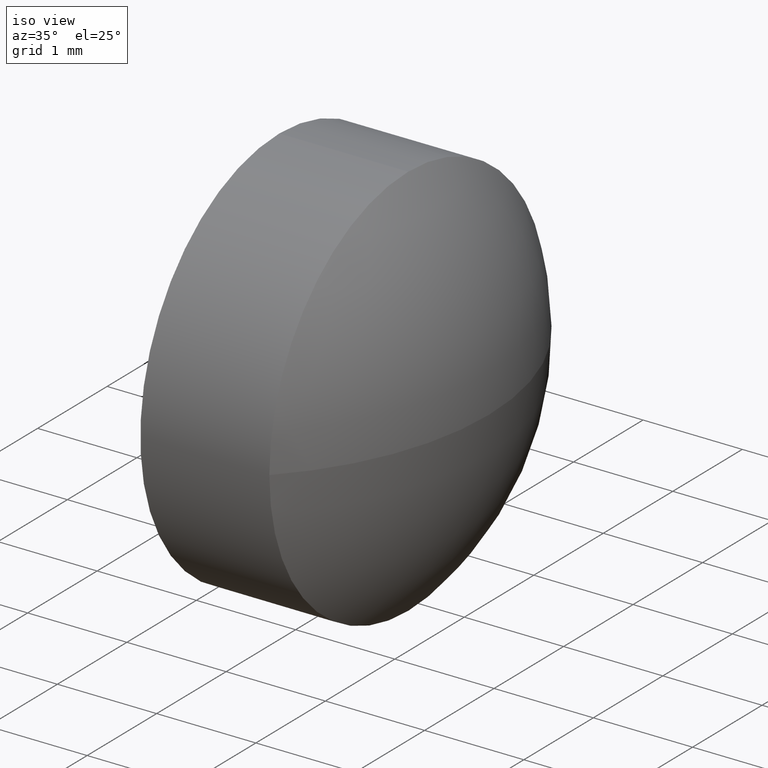
[diagram: clean part render]
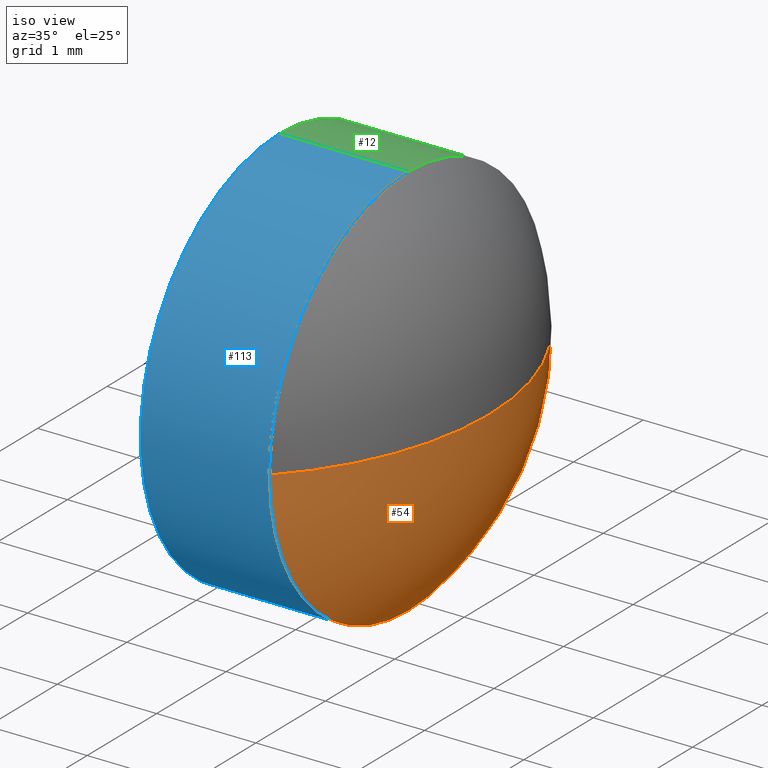
[diagram: same view with three faces highlighted in distinct colors, each labeled with its STEP entity id]
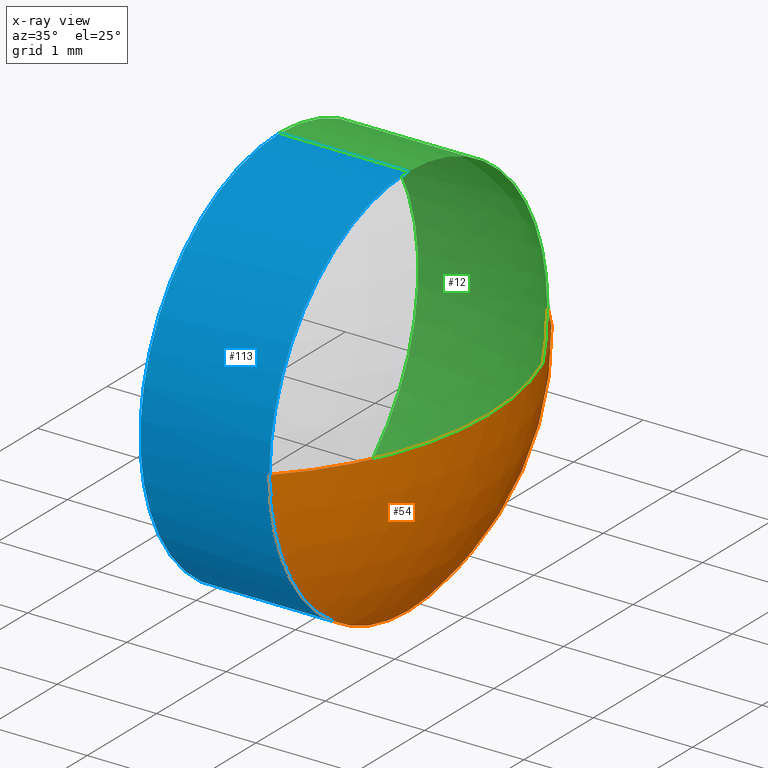
[diagram: x-ray of the same camera — body ghosted, the three highlighted faces saturated]
A machine part, iso view with three faces highlighted in distinct colors.
The next image is the same camera in x-ray (body ghosted, the three faces saturated) — at least one of them is partly hidden behind the body in this view.
Their STEP definitions:

[orange] entity #54 — the highlighted spherical surface has radius 2.8741 mm.
#3 = EDGE_CURVE ( 'NONE', #177, #56, #150, .T. ) ;
#8 = CIRCLE ( 'NONE', #165, 2.874135802469146600 ) ;
#9 = AXIS2_PLACEMENT_3D ( 'NONE', #120, #88, #47 ) ;
#18 = CARTESIAN_POINT ( 'NONE',  ( 370.6620261446945500, 57.67682587969912300, 2.449293598294690600E-016 ) ) ;
#21 = ORIENTED_EDGE ( 'NONE', *, *, #137, .F. ) ;
#25 = ORIENTED_EDGE ( 'NONE', *, *, #110, .F. ) ;
#28 = SPHERICAL_SURFACE ( 'NONE', #157, 2.874135802469149200 ) ;
#35 = DIRECTION ( 'NONE',  ( 0.0000000000000000000, 0.0000000000000000000, 1.000000000000000000 ) ) ;
#37 = FACE_OUTER_BOUND ( 'NONE', #160, .T. ) ;
#44 = VERTEX_POINT ( 'NONE', #18 ) ;
#46 = DIRECTION ( 'NONE',  ( 0.0000000000000000000, 0.0000000000000000000, 1.000000000000000000 ) ) ;
#47 = DIRECTION ( 'NONE',  ( 0.0000000000000000000, 0.0000000000000000000, 1.000000000000000000 ) ) ;
#50 = CARTESIAN_POINT ( 'NONE',  ( 368.5978903422254100, 55.67682587969913800, 0.0000000000000000000 ) ) ;
#52 = VERTEX_POINT ( 'NONE', #164 ) ;
#54 = ADVANCED_FACE ( 'NONE', ( #37 ), #28, .T. ) ;
#56 = VERTEX_POINT ( 'NONE', #63 ) ;
#63 = CARTESIAN_POINT ( 'NONE',  ( 370.6620261446945500, 53.67682587969914500, 0.0000000000000000000 ) ) ;
#79 = ORIENTED_EDGE ( 'NONE', *, *, #3, .T. ) ;
#85 = DIRECTION ( 'NONE',  ( 0.0000000000000000000, 0.0000000000000000000, -1.000000000000000000 ) ) ;
#88 = DIRECTION ( 'NONE',  ( -1.000000000000000000, -0.0000000000000000000, -0.0000000000000000000 ) ) ;
#92 = EDGE_CURVE ( 'NONE', #44, #52, #119, .T. ) ;
#95 = ORIENTED_EDGE ( 'NONE', *, *, #92, .F. ) ;
#99 = CARTESIAN_POINT ( 'NONE',  ( 368.5978903422254100, 55.67682587969913800, 0.0000000000000000000 ) ) ;
#100 = DIRECTION ( 'NONE',  ( -1.000000000000000000, 0.0000000000000000000, 0.0000000000000000000 ) ) ;
#104 = DIRECTION ( 'NONE',  ( 0.0000000000000000000, -1.000000000000000000, -1.224646799147354400E-016 ) ) ;
#109 = CIRCLE ( 'NONE', #9, 2.000000000000001800 ) ;
#110 = EDGE_CURVE ( 'NONE', #177, #44, #8, .T. ) ;
#119 = CIRCLE ( 'NONE', #154, 2.000000000000001800 ) ;
#120 = CARTESIAN_POINT ( 'NONE',  ( 370.6620261446945500, 55.67682587969912300, 0.0000000000000000000 ) ) ;
#121 = DIRECTION ( 'NONE',  ( 0.0000000000000000000, -1.224646799147353200E-016, 1.000000000000000000 ) ) ;
#124 = CARTESIAN_POINT ( 'NONE',  ( 370.6620261446945500, 55.67682587969912300, 0.0000000000000000000 ) ) ;
#126 = AXIS2_PLACEMENT_3D ( 'NONE', #99, #85, #100 ) ;
#131 = CARTESIAN_POINT ( 'NONE',  ( 371.4720261446945500, 55.67682587969913800, 0.0000000000000000000 ) ) ;
#133 = CARTESIAN_POINT ( 'NONE',  ( 368.5978903422254100, 55.67682587969913800, 0.0000000000000000000 ) ) ;
#137 = EDGE_CURVE ( 'NONE', #52, #56, #109, .T. ) ;
#150 = CIRCLE ( 'NONE', #126, 2.874135802469146600 ) ;
#152 = DIRECTION ( 'NONE',  ( 0.0000000000000000000, -1.000000000000000000, 0.0000000000000000000 ) ) ;
#154 = AXIS2_PLACEMENT_3D ( 'NONE', #124, #167, #46 ) ;
#157 = AXIS2_PLACEMENT_3D ( 'NONE', #50, #35, #152 ) ;
#160 = EDGE_LOOP ( 'NONE', ( #25, #79, #21, #95 ) ) ;
#164 = CARTESIAN_POINT ( 'NONE',  ( 370.6620261446945500, 55.67682587969912300, -2.000000000000001800 ) ) ;
#165 = AXIS2_PLACEMENT_3D ( 'NONE', #133, #121, #104 ) ;
#167 = DIRECTION ( 'NONE',  ( -1.000000000000000000, -0.0000000000000000000, -0.0000000000000000000 ) ) ;
#177 = VERTEX_POINT ( 'NONE', #131 ) ;

[blue] entity #113 — the highlighted cylindrical surface (partial cylindrical patch) has radius 2 mm, axis along (-1, -0, -0).
#2 = CARTESIAN_POINT ( 'NONE',  ( 370.6620261446945500, 55.67682587969912300, 0.0000000000000000000 ) ) ;
#6 = ORIENTED_EDGE ( 'NONE', *, *, #129, .T. ) ;
#9 = AXIS2_PLACEMENT_3D ( 'NONE', #120, #88, #47 ) ;
#14 = AXIS2_PLACEMENT_3D ( 'NONE', #2, #45, #178 ) ;
#15 = DIRECTION ( 'NONE',  ( -1.000000000000000000, -0.0000000000000000000, -0.0000000000000000000 ) ) ;
#17 = CARTESIAN_POINT ( 'NONE',  ( 370.6620261446945500, 55.67682587969912300, 2.000000000000001800 ) ) ;
#26 = LINE ( 'NONE', #105, #155 ) ;
#29 = CARTESIAN_POINT ( 'NONE',  ( 368.9339194506478600, 55.67682587969912300, -2.000000000000001800 ) ) ;
#32 = CARTESIAN_POINT ( 'NONE',  ( 368.9339194506478600, 55.67682587969912300, 0.0000000000000000000 ) ) ;
#40 = VERTEX_POINT ( 'NONE', #102 ) ;
#45 = DIRECTION ( 'NONE',  ( -1.000000000000000000, -0.0000000000000000000, -0.0000000000000000000 ) ) ;
#47 = DIRECTION ( 'NONE',  ( 0.0000000000000000000, 0.0000000000000000000, 1.000000000000000000 ) ) ;
#52 = VERTEX_POINT ( 'NONE', #164 ) ;
#56 = VERTEX_POINT ( 'NONE', #63 ) ;
#57 = EDGE_LOOP ( 'NONE', ( #142, #67, #6, #159, #93 ) ) ;
#63 = CARTESIAN_POINT ( 'NONE',  ( 370.6620261446945500, 53.67682587969914500, 0.0000000000000000000 ) ) ;
#64 = AXIS2_PLACEMENT_3D ( 'NONE', #151, #106, #72 ) ;
#67 = ORIENTED_EDGE ( 'NONE', *, *, #137, .T. ) ;
#72 = DIRECTION ( 'NONE',  ( 0.0000000000000000000, 0.0000000000000000000, 1.000000000000000000 ) ) ;
#74 = DIRECTION ( 'NONE',  ( -1.000000000000000000, -0.0000000000000000000, -0.0000000000000000000 ) ) ;
#76 = CIRCLE ( 'NONE', #14, 2.000000000000001800 ) ;
#82 = EDGE_CURVE ( 'NONE', #127, #40, #144, .T. ) ;
#88 = DIRECTION ( 'NONE',  ( -1.000000000000000000, -0.0000000000000000000, -0.0000000000000000000 ) ) ;
#90 = AXIS2_PLACEMENT_3D ( 'NONE', #32, #132, #134 ) ;
#91 = CYLINDRICAL_SURFACE ( 'NONE', #90, 2.000000000000001800 ) ;
#93 = ORIENTED_EDGE ( 'NONE', *, *, #82, .F. ) ;
#97 = EDGE_CURVE ( 'NONE', #135, #40, #26, .T. ) ;
#102 = CARTESIAN_POINT ( 'NONE',  ( 369.3620261446946000, 55.67682587969912300, 2.000000000000001800 ) ) ;
#105 = CARTESIAN_POINT ( 'NONE',  ( 368.9339194506478600, 55.67682587969912300, 2.000000000000001800 ) ) ;
#106 = DIRECTION ( 'NONE',  ( -1.000000000000000000, -0.0000000000000000000, -0.0000000000000000000 ) ) ;
#109 = CIRCLE ( 'NONE', #9, 2.000000000000001800 ) ;
#113 = ADVANCED_FACE ( 'NONE', ( #158 ), #91, .T. ) ;
#115 = LINE ( 'NONE', #29, #173 ) ;
#120 = CARTESIAN_POINT ( 'NONE',  ( 370.6620261446945500, 55.67682587969912300, 0.0000000000000000000 ) ) ;
#127 = VERTEX_POINT ( 'NONE', #146 ) ;
#129 = EDGE_CURVE ( 'NONE', #56, #135, #76, .T. ) ;
#132 = DIRECTION ( 'NONE',  ( -1.000000000000000000, -0.0000000000000000000, -0.0000000000000000000 ) ) ;
#134 = DIRECTION ( 'NONE',  ( 0.0000000000000000000, 0.0000000000000000000, 1.000000000000000000 ) ) ;
#135 = VERTEX_POINT ( 'NONE', #17 ) ;
#137 = EDGE_CURVE ( 'NONE', #52, #56, #109, .T. ) ;
#142 = ORIENTED_EDGE ( 'NONE', *, *, #166, .F. ) ;
#144 = CIRCLE ( 'NONE', #64, 2.000000000000001800 ) ;
#146 = CARTESIAN_POINT ( 'NONE',  ( 369.3620261446946000, 55.67682587969912300, -2.000000000000001800 ) ) ;
#151 = CARTESIAN_POINT ( 'NONE',  ( 369.3620261446946000, 55.67682587969912300, 0.0000000000000000000 ) ) ;
#155 = VECTOR ( 'NONE', #74, 1000.000000000000000 ) ;
#158 = FACE_OUTER_BOUND ( 'NONE', #57, .T. ) ;
#159 = ORIENTED_EDGE ( 'NONE', *, *, #97, .T. ) ;
#164 = CARTESIAN_POINT ( 'NONE',  ( 370.6620261446945500, 55.67682587969912300, -2.000000000000001800 ) ) ;
#166 = EDGE_CURVE ( 'NONE', #52, #127, #115, .T. ) ;
#173 = VECTOR ( 'NONE', #15, 1000.000000000000000 ) ;
#178 = DIRECTION ( 'NONE',  ( 0.0000000000000000000, 0.0000000000000000000, 1.000000000000000000 ) ) ;

[green] entity #12 — the highlighted cylindrical surface (partial cylindrical patch) has radius 2 mm, axis along (-1, -0, -0).
#12 = ADVANCED_FACE ( 'NONE', ( #184 ), #78, .T. ) ;
#15 = DIRECTION ( 'NONE',  ( -1.000000000000000000, -0.0000000000000000000, -0.0000000000000000000 ) ) ;
#16 = CARTESIAN_POINT ( 'NONE',  ( 368.9339194506478600, 55.67682587969912300, 0.0000000000000000000 ) ) ;
#17 = CARTESIAN_POINT ( 'NONE',  ( 370.6620261446945500, 55.67682587969912300, 2.000000000000001800 ) ) ;
#18 = CARTESIAN_POINT ( 'NONE',  ( 370.6620261446945500, 57.67682587969912300, 2.449293598294690600E-016 ) ) ;
#24 = ORIENTED_EDGE ( 'NONE', *, *, #166, .T. ) ;
#26 = LINE ( 'NONE', #105, #155 ) ;
#29 = CARTESIAN_POINT ( 'NONE',  ( 368.9339194506478600, 55.67682587969912300, -2.000000000000001800 ) ) ;
#30 = CARTESIAN_POINT ( 'NONE',  ( 369.3620261446946000, 55.67682587969912300, 0.0000000000000000000 ) ) ;
#40 = VERTEX_POINT ( 'NONE', #102 ) ;
#44 = VERTEX_POINT ( 'NONE', #18 ) ;
#46 = DIRECTION ( 'NONE',  ( 0.0000000000000000000, 0.0000000000000000000, 1.000000000000000000 ) ) ;
#51 = ORIENTED_EDGE ( 'NONE', *, *, #65, .F. ) ;
#52 = VERTEX_POINT ( 'NONE', #164 ) ;
#59 = DIRECTION ( 'NONE',  ( -1.000000000000000000, -0.0000000000000000000, -0.0000000000000000000 ) ) ;
#65 = EDGE_CURVE ( 'NONE', #40, #127, #69, .T. ) ;
#69 = CIRCLE ( 'NONE', #145, 2.000000000000001800 ) ;
#73 = ORIENTED_EDGE ( 'NONE', *, *, #92, .T. ) ;
#74 = DIRECTION ( 'NONE',  ( -1.000000000000000000, -0.0000000000000000000, -0.0000000000000000000 ) ) ;
#75 = DIRECTION ( 'NONE',  ( 0.0000000000000000000, 0.0000000000000000000, 1.000000000000000000 ) ) ;
#78 = CYLINDRICAL_SURFACE ( 'NONE', #169, 2.000000000000001800 ) ;
#84 = ORIENTED_EDGE ( 'NONE', *, *, #114, .T. ) ;
#86 = CARTESIAN_POINT ( 'NONE',  ( 370.6620261446945500, 55.67682587969912300, 0.0000000000000000000 ) ) ;
#87 = DIRECTION ( 'NONE',  ( 0.0000000000000000000, 0.0000000000000000000, 1.000000000000000000 ) ) ;
#89 = DIRECTION ( 'NONE',  ( -1.000000000000000000, -0.0000000000000000000, -0.0000000000000000000 ) ) ;
#92 = EDGE_CURVE ( 'NONE', #44, #52, #119, .T. ) ;
#97 = EDGE_CURVE ( 'NONE', #135, #40, #26, .T. ) ;
#101 = DIRECTION ( 'NONE',  ( -1.000000000000000000, -0.0000000000000000000, -0.0000000000000000000 ) ) ;
#102 = CARTESIAN_POINT ( 'NONE',  ( 369.3620261446946000, 55.67682587969912300, 2.000000000000001800 ) ) ;
#105 = CARTESIAN_POINT ( 'NONE',  ( 368.9339194506478600, 55.67682587969912300, 2.000000000000001800 ) ) ;
#112 = EDGE_LOOP ( 'NONE', ( #73, #24, #51, #122, #84 ) ) ;
#114 = EDGE_CURVE ( 'NONE', #135, #44, #185, .T. ) ;
#115 = LINE ( 'NONE', #29, #173 ) ;
#119 = CIRCLE ( 'NONE', #154, 2.000000000000001800 ) ;
#122 = ORIENTED_EDGE ( 'NONE', *, *, #97, .F. ) ;
#124 = CARTESIAN_POINT ( 'NONE',  ( 370.6620261446945500, 55.67682587969912300, 0.0000000000000000000 ) ) ;
#127 = VERTEX_POINT ( 'NONE', #146 ) ;
#135 = VERTEX_POINT ( 'NONE', #17 ) ;
#145 = AXIS2_PLACEMENT_3D ( 'NONE', #30, #89, #174 ) ;
#146 = CARTESIAN_POINT ( 'NONE',  ( 369.3620261446946000, 55.67682587969912300, -2.000000000000001800 ) ) ;
#154 = AXIS2_PLACEMENT_3D ( 'NONE', #124, #167, #46 ) ;
#155 = VECTOR ( 'NONE', #74, 1000.000000000000000 ) ;
#164 = CARTESIAN_POINT ( 'NONE',  ( 370.6620261446945500, 55.67682587969912300, -2.000000000000001800 ) ) ;
#166 = EDGE_CURVE ( 'NONE', #52, #127, #115, .T. ) ;
#167 = DIRECTION ( 'NONE',  ( -1.000000000000000000, -0.0000000000000000000, -0.0000000000000000000 ) ) ;
#169 = AXIS2_PLACEMENT_3D ( 'NONE', #16, #59, #87 ) ;
#173 = VECTOR ( 'NONE', #15, 1000.000000000000000 ) ;
#174 = DIRECTION ( 'NONE',  ( 0.0000000000000000000, 0.0000000000000000000, 1.000000000000000000 ) ) ;
#183 = AXIS2_PLACEMENT_3D ( 'NONE', #86, #101, #75 ) ;
#184 = FACE_OUTER_BOUND ( 'NONE', #112, .T. ) ;
#185 = CIRCLE ( 'NONE', #183, 2.000000000000001800 ) ;